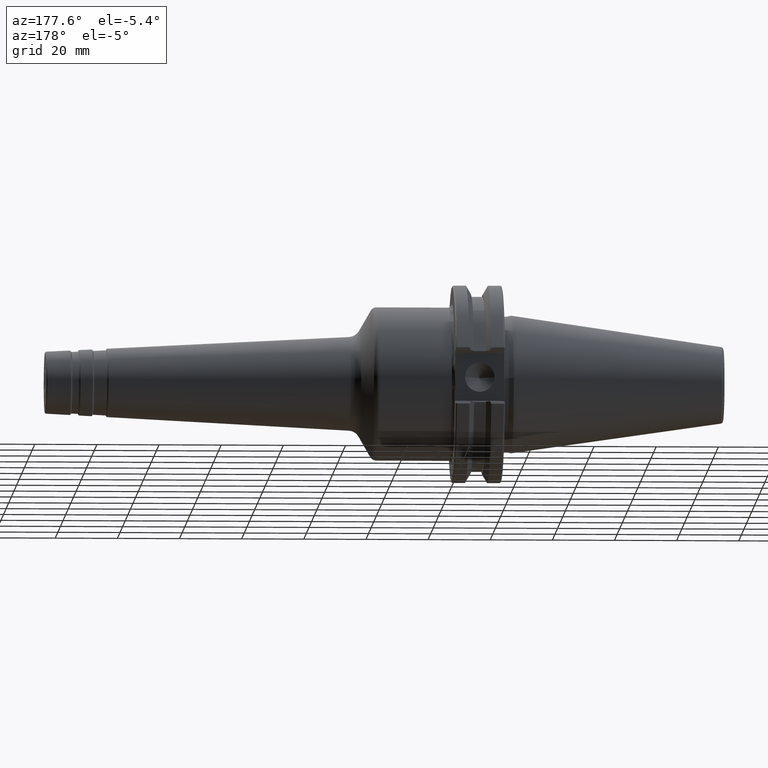
[diagram: clean part render]
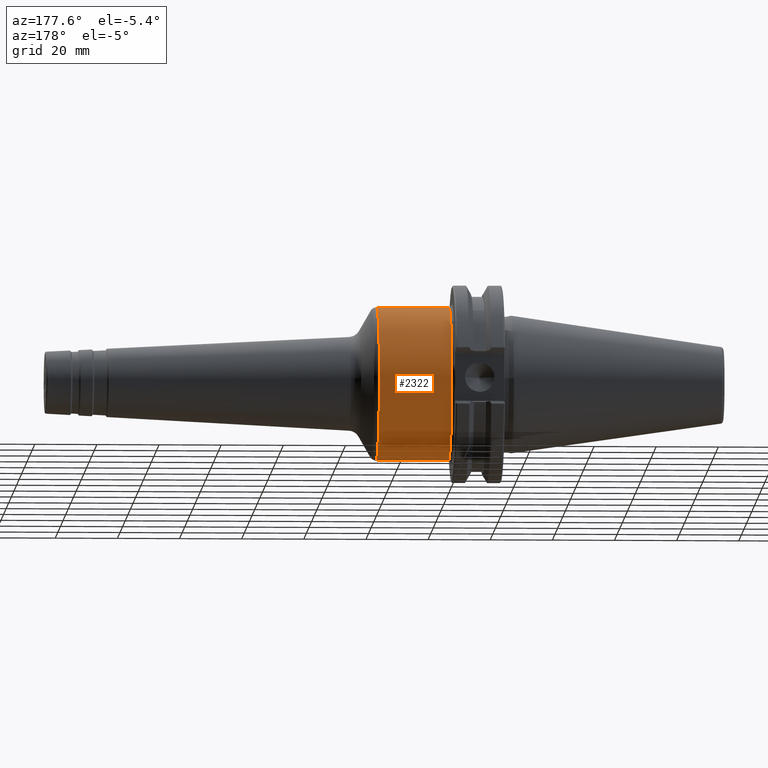
[diagram: same view with one face highlighted and labeled with its STEP entity id]
A machine part, auxiliary view. The second image highlights one B-rep face of the part: STEP entity #2322.
In plain terms, the highlighted cylindrical surface (partial cylindrical patch) has radius 24.75 mm, axis along (1, 0, 0).
Its self-contained STEP definition (entity closure, byte-faithful):
#230=CARTESIAN_POINT('',(2.0075E1,0.E0,0.E0));
#231=DIRECTION('',(1.E0,0.E0,0.E0));
#232=DIRECTION('',(0.E0,0.E0,-1.E0));
#233=AXIS2_PLACEMENT_3D('',#230,#231,#232);
#250=DIRECTION('',(-1.E0,0.E0,0.E0));
#251=VECTOR('',#250,2.330514753874E1);
#252=CARTESIAN_POINT('',(4.338014753874E1,0.E0,-2.475E1));
#253=LINE('',#252,#251);
#254=DIRECTION('',(-1.E0,0.E0,0.E0));
#255=VECTOR('',#254,2.330514753874E1);
#256=CARTESIAN_POINT('',(4.338014753874E1,0.E0,2.475E1));
#257=LINE('',#256,#255);
#263=CARTESIAN_POINT('',(4.338014753874E1,0.E0,0.E0));
#264=DIRECTION('',(1.E0,0.E0,0.E0));
#265=DIRECTION('',(0.E0,0.E0,-1.E0));
#266=AXIS2_PLACEMENT_3D('',#263,#264,#265);
#1816=CARTESIAN_POINT('',(4.338014753874E1,0.E0,-2.475E1));
#1817=VERTEX_POINT('',#1816);
#1818=CARTESIAN_POINT('',(2.0075E1,0.E0,-2.475E1));
#1819=VERTEX_POINT('',#1818);
#1872=CARTESIAN_POINT('',(4.338014753874E1,0.E0,2.475E1));
#1873=VERTEX_POINT('',#1872);
#1874=CARTESIAN_POINT('',(2.0075E1,0.E0,2.475E1));
#1875=VERTEX_POINT('',#1874);
#2310=CARTESIAN_POINT('',(1.25275E1,0.E0,0.E0));
#2311=DIRECTION('',(1.E0,0.E0,0.E0));
#2312=DIRECTION('',(0.E0,0.E0,1.E0));
#2313=AXIS2_PLACEMENT_3D('',#2310,#2311,#2312);
#2314=CYLINDRICAL_SURFACE('',#2313,2.475E1);
#2315=ORIENTED_EDGE('',*,*,#2300,.F.);
#2317=ORIENTED_EDGE('',*,*,#2316,.T.);
#2318=ORIENTED_EDGE('',*,*,#2303,.T.);
#2319=ORIENTED_EDGE('',*,*,#2269,.F.);
#2320=EDGE_LOOP('',(#2315,#2317,#2318,#2319));
#2321=FACE_OUTER_BOUND('',#2320,.F.);
#2322=ADVANCED_FACE('',(#2321),#2314,.T.);
#234=CIRCLE('',#233,2.475E1);
#267=CIRCLE('',#266,2.475E1);
#2269=EDGE_CURVE('',#1819,#1875,#234,.T.);
#2300=EDGE_CURVE('',#1817,#1819,#253,.T.);
#2303=EDGE_CURVE('',#1873,#1875,#257,.T.);
#2316=EDGE_CURVE('',#1817,#1873,#267,.T.);